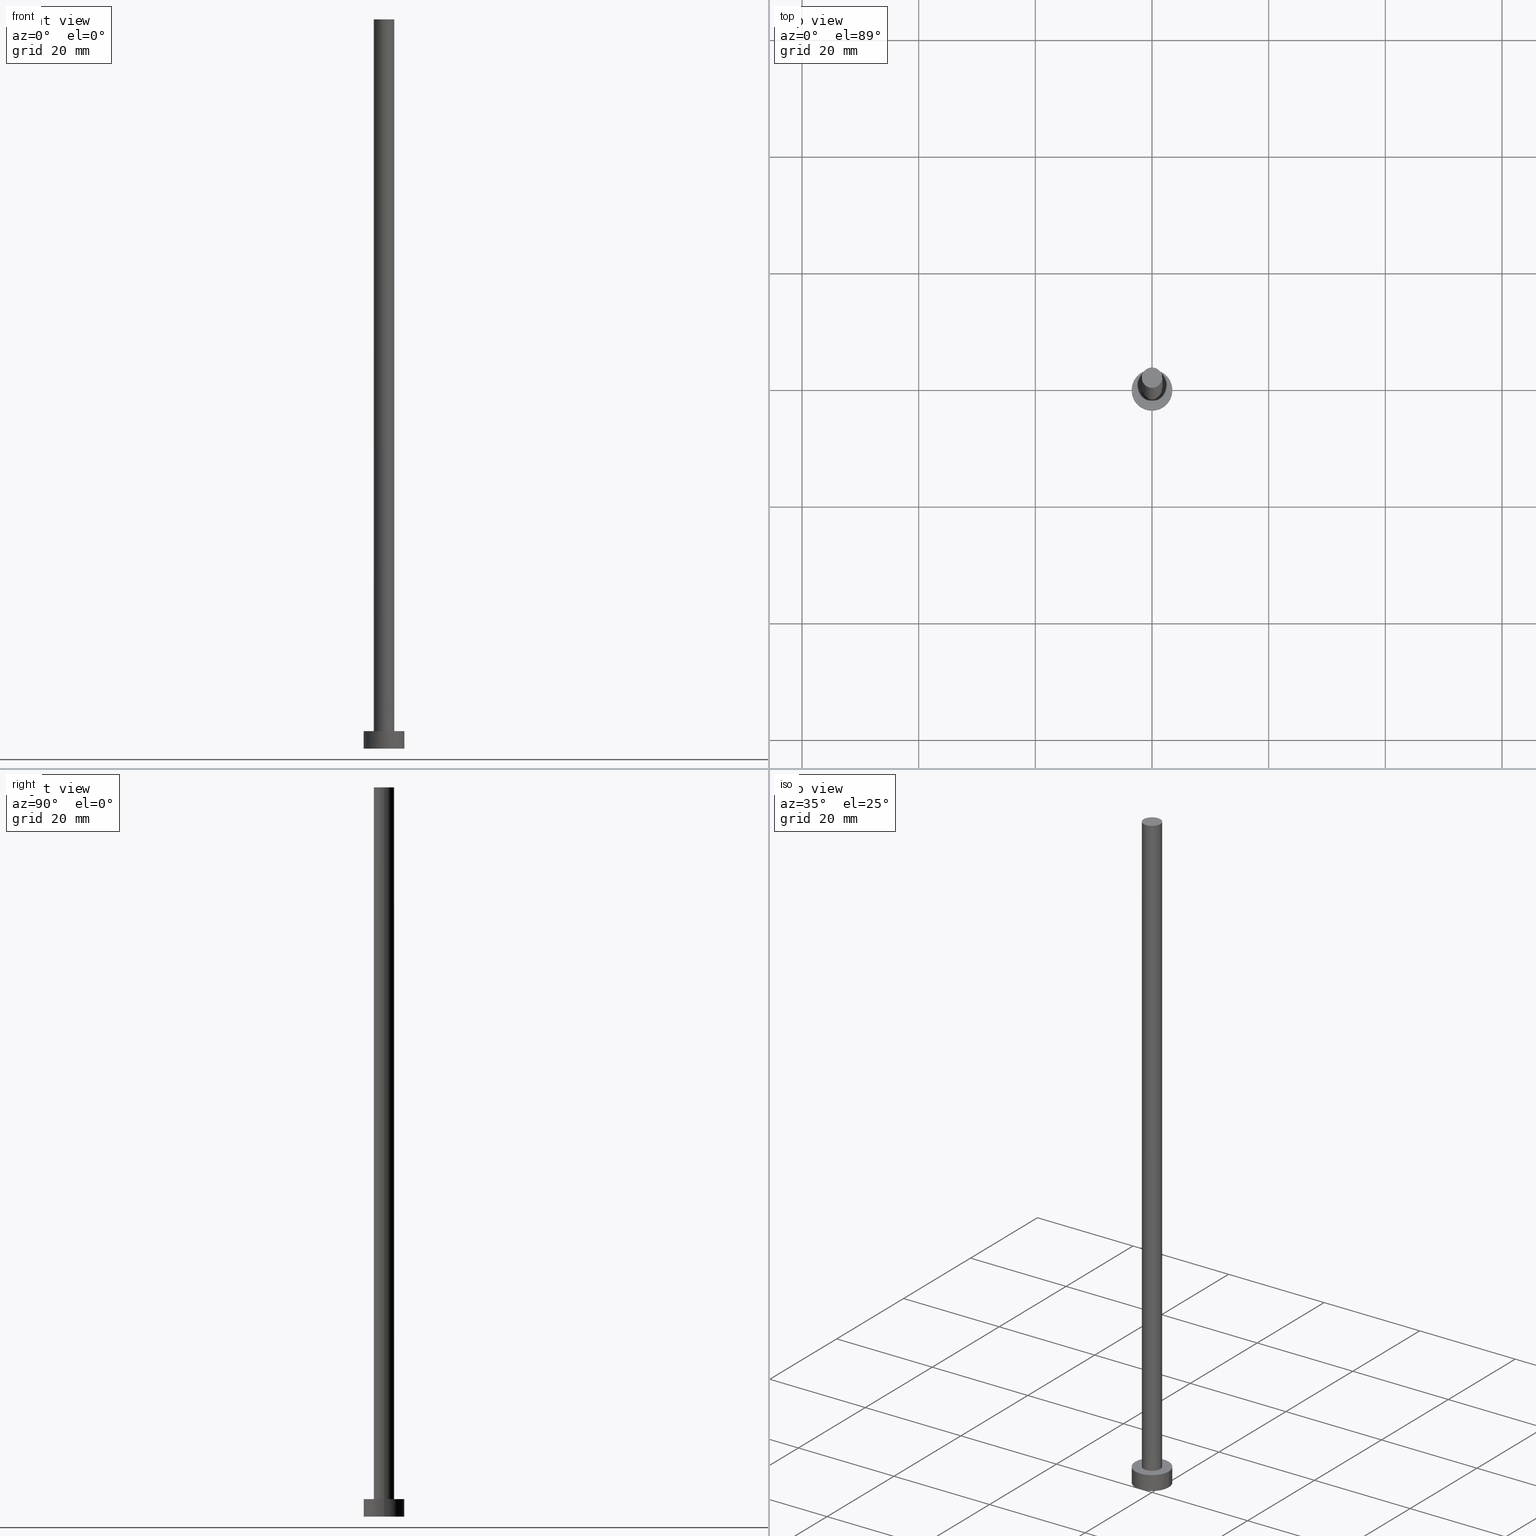
[diagram: canonical four-view strip — front | top / right | iso, engineering-drawing reading convention]
A machine part, canonical four-view strip (front | top / right | iso — engineering-drawing reading convention). The complete STEP part file that produces these views, byte-faithful:
ISO-10303-21;
HEADER;
FILE_DESCRIPTION (( 'STEP AP203' ),
    '1' );
FILE_NAME ('5304.STEP',
    '2023-02-13T14:24:23',
    ( '' ),
    ( '' ),
    'SwSTEP 2.0',
    'SolidWorks 2019',
    '' );
FILE_SCHEMA (( 'CONFIG_CONTROL_DESIGN' ));
ENDSEC;

DATA;
#1 = AXIS2_PLACEMENT_3D ( 'NONE', #151, #25, #3 ) ;
#2 = ORIENTED_EDGE ( 'NONE', *, *, #157, .T. ) ;
#3 = DIRECTION ( 'NONE',  ( 1.000000000000000000, 0.000000000000000000, -0.000000000000000000 ) ) ;
#4 = CARTESIAN_POINT ( 'NONE',  ( 0.000000000000000000, 0.000000000000000000, 3.000000000000000000 ) ) ;
#5 = DIRECTION ( 'NONE',  ( -1.000000000000000000, 0.000000000000000000, 0.000000000000000000 ) ) ;
#6 = ADVANCED_FACE ( 'NONE', ( #26 ), #211, .T. ) ;
#7 = PERSON_AND_ORGANIZATION_ROLE ( 'creator' ) ;
#8 = APPLICATION_CONTEXT ( 'configuration controlled 3d designs of mechanical parts and assemblies' ) ;
#9 = CALENDAR_DATE ( 2023, 13, 2 ) ;
#10 = CC_DESIGN_PERSON_AND_ORGANIZATION_ASSIGNMENT ( #127, #14, ( #139 ) ) ;
#11 = CIRCLE ( 'NONE', #158, 3.500000000000000444 ) ;
#12 = LOCAL_TIME ( 15, 24, 23.00000000000000000, #249 ) ;
#13 = COORDINATED_UNIVERSAL_TIME_OFFSET ( 1, 0, .AHEAD. ) ;
#14 = PERSON_AND_ORGANIZATION_ROLE ( 'classification_officer' ) ;
#15 = APPROVAL_STATUS ( 'not_yet_approved' ) ;
#16 = VERTEX_POINT ( 'NONE', #32 ) ;
#17 = EDGE_CURVE ( 'NONE', #16, #148, #189, .T. ) ;
#18 = EDGE_LOOP ( 'NONE', ( #106, #184, #219, #34 ) ) ;
#19 =( NAMED_UNIT ( * ) SI_UNIT ( $, .STERADIAN. ) SOLID_ANGLE_UNIT ( ) );
#20 = ORIENTED_EDGE ( 'NONE', *, *, #95, .F. ) ;
#21 = CARTESIAN_POINT ( 'NONE',  ( 0.000000000000000000, 0.000000000000000000, 3.000000000000000000 ) ) ;
#22 = DIRECTION ( 'NONE',  ( -0.000000000000000000, -0.000000000000000000, -1.000000000000000000 ) ) ;
#23 = DIRECTION ( 'NONE',  ( -1.000000000000000000, 0.000000000000000000, 0.000000000000000000 ) ) ;
#24 = LINE ( 'NONE', #112, #153 ) ;
#25 = DIRECTION ( 'NONE',  ( 0.000000000000000000, 0.000000000000000000, 1.000000000000000000 ) ) ;
#26 = FACE_OUTER_BOUND ( 'NONE', #195, .T. ) ;
#27 = PERSON_AND_ORGANIZATION ( #197, #64 ) ;
#28 = CARTESIAN_POINT ( 'NONE',  ( 0.000000000000000000, 0.000000000000000000, 0.000000000000000000 ) ) ;
#29 = ADVANCED_FACE ( 'NONE', ( #208, #58 ), #248, .T. ) ;
#30 = PERSON_AND_ORGANIZATION_ROLE ( 'design_owner' ) ;
#31 = MANIFOLD_SOLID_BREP ( 'P�idat vysunut�m3', #236 ) ;
#32 = CARTESIAN_POINT ( 'NONE',  ( 1.750000000000000000, 2.143131898507867804E-16, 3.000000000000000000 ) ) ;
#33 = PERSON_AND_ORGANIZATION ( #197, #64 ) ;
#34 = ORIENTED_EDGE ( 'NONE', *, *, #229, .T. ) ;
#35 = AXIS2_PLACEMENT_3D ( 'NONE', #21, #222, #48 ) ;
#36 = DATE_TIME_ROLE ( 'classification_date' ) ;
#37 = PRODUCT_RELATED_PRODUCT_CATEGORY ( 'detail', '', ( #80 ) ) ;
#38 = EDGE_CURVE ( 'NONE', #84, #16, #245, .T. ) ;
#39 = ORIENTED_EDGE ( 'NONE', *, *, #17, .F. ) ;
#40 = CARTESIAN_POINT ( 'NONE',  ( 3.500000000000000444, 4.286263797015737088E-16, 0.000000000000000000 ) ) ;
#41 = CARTESIAN_POINT ( 'NONE',  ( -1.750000000000000000, 0.000000000000000000, 125.0000000000000000 ) ) ;
#42 = VERTEX_POINT ( 'NONE', #226 ) ;
#43 = DIRECTION ( 'NONE',  ( 0.000000000000000000, 0.000000000000000000, 1.000000000000000000 ) ) ;
#44 = PRODUCT_DEFINITION_SHAPE ( 'NONE', 'NONE',  #77 ) ;
#45 = CC_DESIGN_SECURITY_CLASSIFICATION ( #139, ( #83 ) ) ;
#46 = CYLINDRICAL_SURFACE ( 'NONE', #152, 3.500000000000000444 ) ;
#47 = MECHANICAL_CONTEXT ( 'NONE', #8, 'mechanical' ) ;
#48 = DIRECTION ( 'NONE',  ( 1.000000000000000000, 0.000000000000000000, 0.000000000000000000 ) ) ;
#49 = DATE_AND_TIME ( #76, #12 ) ;
#50 = CARTESIAN_POINT ( 'NONE',  ( 3.500000000000000444, 4.286263797015737088E-16, 3.000000000000000000 ) ) ;
#51 = AXIS2_PLACEMENT_3D ( 'NONE', #69, #150, #82 ) ;
#52 = PERSON_AND_ORGANIZATION ( #197, #64 ) ;
#53 = FACE_OUTER_BOUND ( 'NONE', #18, .T. ) ;
#54 =( NAMED_UNIT ( * ) PLANE_ANGLE_UNIT ( ) SI_UNIT ( $, .RADIAN. ) );
#55 = DIRECTION ( 'NONE',  ( -1.000000000000000000, 0.000000000000000000, 0.000000000000000000 ) ) ;
#56 = AXIS2_PLACEMENT_3D ( 'NONE', #200, #114, #23 ) ;
#57 = DIRECTION ( 'NONE',  ( 1.000000000000000000, 0.000000000000000000, 0.000000000000000000 ) ) ;
#58 = FACE_OUTER_BOUND ( 'NONE', #161, .T. ) ;
#59 = LOCAL_TIME ( 15, 24, 23.00000000000000000, #138 ) ;
#60 = ORIENTED_EDGE ( 'NONE', *, *, #110, .F. ) ;
#61 = SHAPE_DEFINITION_REPRESENTATION ( #44, #91 ) ;
#62 = APPROVAL ( #15, 'NEUR�EN�' ) ;
#63 = ORIENTED_EDGE ( 'NONE', *, *, #229, .F. ) ;
#64 = ORGANIZATION ( 'NEUR�EN�', 'NEUR�EN�', '' ) ;
#65 = CARTESIAN_POINT ( 'NONE',  ( 0.000000000000000000, 0.000000000000000000, 0.000000000000000000 ) ) ;
#66 = CC_DESIGN_DATE_AND_TIME_ASSIGNMENT ( #196, #36, ( #139 ) ) ;
#67 = CARTESIAN_POINT ( 'NONE',  ( 1.750000000000000000, 2.143131898507867804E-16, 125.0000000000000000 ) ) ;
#68 = CIRCLE ( 'NONE', #35, 3.500000000000000444 ) ;
#69 = CARTESIAN_POINT ( 'NONE',  ( 0.000000000000000000, 0.000000000000000000, 3.000000000000000000 ) ) ;
#70 = DIRECTION ( 'NONE',  ( -0.000000000000000000, -0.000000000000000000, -1.000000000000000000 ) ) ;
#71 = FACE_OUTER_BOUND ( 'NONE', #253, .T. ) ;
#72 = DATE_TIME_ROLE ( 'creation_date' ) ;
#73 = LOCAL_TIME ( 15, 24, 23.00000000000000000, #212 ) ;
#74 = APPLICATION_PROTOCOL_DEFINITION ( 'international standard', 'config_control_design', 1994, #111 ) ;
#75 = DIRECTION ( 'NONE',  ( 0.000000000000000000, 0.000000000000000000, 1.000000000000000000 ) ) ;
#76 = CALENDAR_DATE ( 2023, 13, 2 ) ;
#77 = PRODUCT_DEFINITION ( 'NEZN�M�', '', #83, #177 ) ;
#78 = ORIENTED_EDGE ( 'NONE', *, *, #140, .F. ) ;
#79 = VERTEX_POINT ( 'NONE', #40 ) ;
#80 = PRODUCT ( '5304', '5304', '', ( #47 ) ) ;
#81 = ORIENTED_EDGE ( 'NONE', *, *, #140, .T. ) ;
#82 = DIRECTION ( 'NONE',  ( 1.000000000000000000, 0.000000000000000000, 0.000000000000000000 ) ) ;
#83 = PRODUCT_DEFINITION_FORMATION_WITH_SPECIFIED_SOURCE ( 'LIBOVOLN�', '', #80, .NOT_KNOWN. ) ;
#84 = VERTEX_POINT ( 'NONE', #67 ) ;
#85 = ADVANCED_FACE ( 'NONE', ( #144 ), #147, .T. ) ;
#86 = DIRECTION ( 'NONE',  ( 1.000000000000000000, 0.000000000000000000, 0.000000000000000000 ) ) ;
#87 = DIRECTION ( 'NONE',  ( 1.000000000000000000, 0.000000000000000000, 0.000000000000000000 ) ) ;
#88 = DIRECTION ( 'NONE',  ( 0.000000000000000000, 0.000000000000000000, 1.000000000000000000 ) ) ;
#89 = VECTOR ( 'NONE', #70, 1000.000000000000000 ) ;
#90 = EDGE_CURVE ( 'NONE', #221, #84, #241, .T. ) ;
#91 = ADVANCED_BREP_SHAPE_REPRESENTATION ( '5304', ( #31, #174 ), #217 ) ;
#92 = AXIS2_PLACEMENT_3D ( 'NONE', #121, #167, #194 ) ;
#93 = APPROVAL_DATE_TIME ( #135, #164 ) ;
#94 = CARTESIAN_POINT ( 'NONE',  ( 0.000000000000000000, 0.000000000000000000, 125.0000000000000000 ) ) ;
#95 = EDGE_CURVE ( 'NONE', #221, #148, #201, .T. ) ;
#96 = APPROVAL_ROLE ( '' ) ;
#97 = DATE_AND_TIME ( #172, #101 ) ;
#98 = APPROVAL_ROLE ( '' ) ;
#99 = VECTOR ( 'NONE', #154, 1000.000000000000000 ) ;
#100 = CC_DESIGN_PERSON_AND_ORGANIZATION_ASSIGNMENT ( #52, #175, ( #83 ) ) ;
#101 = LOCAL_TIME ( 15, 24, 23.00000000000000000, #13 ) ;
#102 = ORIENTED_EDGE ( 'NONE', *, *, #240, .F. ) ;
#103 = CALENDAR_DATE ( 2023, 13, 2 ) ;
#104 = ORIENTED_EDGE ( 'NONE', *, *, #90, .T. ) ;
#105 = VECTOR ( 'NONE', #22, 1000.000000000000000 ) ;
#106 = ORIENTED_EDGE ( 'NONE', *, *, #38, .F. ) ;
#107 = CALENDAR_DATE ( 2023, 13, 2 ) ;
#108 = ORIENTED_EDGE ( 'NONE', *, *, #170, .T. ) ;
#109 = ORIENTED_EDGE ( 'NONE', *, *, #233, .T. ) ;
#110 = EDGE_CURVE ( 'NONE', #84, #221, #235, .T. ) ;
#111 = APPLICATION_CONTEXT ( 'configuration controlled 3d designs of mechanical parts and assemblies' ) ;
#112 = CARTESIAN_POINT ( 'NONE',  ( 3.500000000000000444, 4.286263797015737088E-16, 3.000000000000000000 ) ) ;
#113 = DIRECTION ( 'NONE',  ( 1.000000000000000000, 0.000000000000000000, -0.000000000000000000 ) ) ;
#114 = DIRECTION ( 'NONE',  ( -0.000000000000000000, -0.000000000000000000, -1.000000000000000000 ) ) ;
#115 = CARTESIAN_POINT ( 'NONE',  ( 0.000000000000000000, 0.000000000000000000, 0.000000000000000000 ) ) ;
#116 = CARTESIAN_POINT ( 'NONE',  ( -1.750000000000000000, 0.000000000000000000, 3.000000000000000000 ) ) ;
#117 = APPROVAL ( #120, 'NEUR�EN�' ) ;
#118 = PERSON_AND_ORGANIZATION_ROLE ( 'creator' ) ;
#119 = CARTESIAN_POINT ( 'NONE',  ( 0.000000000000000000, 0.000000000000000000, 125.0000000000000000 ) ) ;
#120 = APPROVAL_STATUS ( 'not_yet_approved' ) ;
#121 = CARTESIAN_POINT ( 'NONE',  ( 0.000000000000000000, 0.000000000000000000, 3.000000000000000000 ) ) ;
#122 = ADVANCED_FACE ( 'NONE', ( #53 ), #155, .T. ) ;
#123 = DIRECTION ( 'NONE',  ( -0.000000000000000000, -0.000000000000000000, -1.000000000000000000 ) ) ;
#124 = ORIENTED_EDGE ( 'NONE', *, *, #157, .F. ) ;
#125 = APPROVAL_PERSON_ORGANIZATION ( #207, #117, #188 ) ;
#126 = ADVANCED_FACE ( 'NONE', ( #234 ), #213, .F. ) ;
#127 = PERSON_AND_ORGANIZATION ( #197, #64 ) ;
#128 = AXIS2_PLACEMENT_3D ( 'NONE', #246, #75, #228 ) ;
#129 = CIRCLE ( 'NONE', #131, 3.500000000000000444 ) ;
#130 = CARTESIAN_POINT ( 'NONE',  ( 0.000000000000000000, 0.000000000000000000, 3.000000000000000000 ) ) ;
#131 = AXIS2_PLACEMENT_3D ( 'NONE', #4, #183, #162 ) ;
#132 = DIRECTION ( 'NONE',  ( 1.000000000000000000, 0.000000000000000000, 0.000000000000000000 ) ) ;
#133 = PLANE ( 'NONE',  #178 ) ;
#134 = CC_DESIGN_PERSON_AND_ORGANIZATION_ASSIGNMENT ( #33, #118, ( #77 ) ) ;
#135 = DATE_AND_TIME ( #9, #247 ) ;
#136 = DIRECTION ( 'NONE',  ( 0.000000000000000000, 0.000000000000000000, 1.000000000000000000 ) ) ;
#137 = DIRECTION ( 'NONE',  ( -1.000000000000000000, 0.000000000000000000, 0.000000000000000000 ) ) ;
#138 = COORDINATED_UNIVERSAL_TIME_OFFSET ( 1, 0, .AHEAD. ) ;
#139 = SECURITY_CLASSIFICATION ( '', '', #214 ) ;
#140 = EDGE_CURVE ( 'NONE', #143, #79, #24, .T. ) ;
#141 = ORIENTED_EDGE ( 'NONE', *, *, #110, .T. ) ;
#142 = APPLICATION_PROTOCOL_DEFINITION ( 'international standard', 'config_control_design', 1994, #8 ) ;
#143 = VERTEX_POINT ( 'NONE', #50 ) ;
#144 = FACE_OUTER_BOUND ( 'NONE', #206, .T. ) ;
#145 = DIRECTION ( 'NONE',  ( -0.000000000000000000, -0.000000000000000000, -1.000000000000000000 ) ) ;
#146 = AXIS2_PLACEMENT_3D ( 'NONE', #65, #136, #244 ) ;
#147 = CYLINDRICAL_SURFACE ( 'NONE', #56, 1.750000000000000000 ) ;
#148 = VERTEX_POINT ( 'NONE', #116 ) ;
#149 = CC_DESIGN_PERSON_AND_ORGANIZATION_ASSIGNMENT ( #27, #7, ( #83 ) ) ;
#150 = DIRECTION ( 'NONE',  ( 0.000000000000000000, 0.000000000000000000, 1.000000000000000000 ) ) ;
#151 = CARTESIAN_POINT ( 'NONE',  ( 0.000000000000000000, 0.000000000000000000, 0.000000000000000000 ) ) ;
#152 = AXIS2_PLACEMENT_3D ( 'NONE', #130, #199, #5 ) ;
#153 = VECTOR ( 'NONE', #145, 1000.000000000000000 ) ;
#154 = DIRECTION ( 'NONE',  ( -0.000000000000000000, -0.000000000000000000, -1.000000000000000000 ) ) ;
#155 = CYLINDRICAL_SURFACE ( 'NONE', #225, 1.750000000000000000 ) ;
#156 = APPROVAL_DATE_TIME ( #192, #62 ) ;
#157 = EDGE_CURVE ( 'NONE', #79, #42, #11, .T. ) ;
#158 = AXIS2_PLACEMENT_3D ( 'NONE', #28, #43, #86 ) ;
#159 = CC_DESIGN_APPROVAL ( #117, ( #83 ) ) ;
#160 = EDGE_LOOP ( 'NONE', ( #78, #102, #108, #202 ) ) ;
#161 = EDGE_LOOP ( 'NONE', ( #239, #109 ) ) ;
#162 = DIRECTION ( 'NONE',  ( 1.000000000000000000, 0.000000000000000000, 0.000000000000000000 ) ) ;
#163 = ORIENTED_EDGE ( 'NONE', *, *, #38, .T. ) ;
#164 = APPROVAL ( #224, 'NEUR�EN�' ) ;
#165 = CARTESIAN_POINT ( 'NONE',  ( -3.500000000000000444, 0.000000000000000000, 3.000000000000000000 ) ) ;
#166 = ADVANCED_FACE ( 'NONE', ( #186 ), #46, .T. ) ;
#167 = DIRECTION ( 'NONE',  ( 0.000000000000000000, 0.000000000000000000, 1.000000000000000000 ) ) ;
#168 =( LENGTH_UNIT ( ) NAMED_UNIT ( * ) SI_UNIT ( .MILLI., .METRE. ) );
#169 = APPROVAL_DATE_TIME ( #49, #117 ) ;
#170 = EDGE_CURVE ( 'NONE', #216, #42, #243, .T. ) ;
#171 = CARTESIAN_POINT ( 'NONE',  ( 0.000000000000000000, 0.000000000000000000, 3.000000000000000000 ) ) ;
#172 = CALENDAR_DATE ( 2023, 13, 2 ) ;
#173 = AXIS2_PLACEMENT_3D ( 'NONE', #230, #123, #55 ) ;
#174 = AXIS2_PLACEMENT_3D ( 'NONE', #115, #185, #87 ) ;
#175 = PERSON_AND_ORGANIZATION_ROLE ( 'design_supplier' ) ;
#176 = ORIENTED_EDGE ( 'NONE', *, *, #170, .F. ) ;
#177 = DESIGN_CONTEXT ( 'detailed design', #111, 'design' ) ;
#178 = AXIS2_PLACEMENT_3D ( 'NONE', #119, #88, #113 ) ;
#179 = CC_DESIGN_PERSON_AND_ORGANIZATION_ASSIGNMENT ( #203, #30, ( #80 ) ) ;
#180 = ORIENTED_EDGE ( 'NONE', *, *, #252, .F. ) ;
#181 = APPROVAL_PERSON_ORGANIZATION ( #254, #62, #98 ) ;
#182 = CARTESIAN_POINT ( 'NONE',  ( -3.500000000000000444, 0.000000000000000000, 3.000000000000000000 ) ) ;
#183 = DIRECTION ( 'NONE',  ( 0.000000000000000000, 0.000000000000000000, 1.000000000000000000 ) ) ;
#184 = ORIENTED_EDGE ( 'NONE', *, *, #90, .F. ) ;
#185 = DIRECTION ( 'NONE',  ( 0.000000000000000000, 0.000000000000000000, 1.000000000000000000 ) ) ;
#186 = FACE_OUTER_BOUND ( 'NONE', #160, .T. ) ;
#187 = CIRCLE ( 'NONE', #146, 3.500000000000000444 ) ;
#188 = APPROVAL_ROLE ( '' ) ;
#189 = CIRCLE ( 'NONE', #204, 1.750000000000000000 ) ;
#190 = DIRECTION ( 'NONE',  ( 0.000000000000000000, 0.000000000000000000, 1.000000000000000000 ) ) ;
#191 = CARTESIAN_POINT ( 'NONE',  ( 1.750000000000000000, 2.143131898507867804E-16, 125.0000000000000000 ) ) ;
#192 = DATE_AND_TIME ( #103, #73 ) ;
#193 = APPROVAL_PERSON_ORGANIZATION ( #227, #164, #96 ) ;
#194 = DIRECTION ( 'NONE',  ( 1.000000000000000000, 0.000000000000000000, -0.000000000000000000 ) ) ;
#195 = EDGE_LOOP ( 'NONE', ( #255, #81, #2, #176 ) ) ;
#196 = DATE_AND_TIME ( #107, #59 ) ;
#197 = PERSON ( 'NEUR�EN�', 'NEUR�EN�', 'NEUR�EN�', ('NEUR�EN�'), ('NEUR�EN�'), ('NEUR�EN�') ) ;
#198 = CC_DESIGN_APPROVAL ( #62, ( #139 ) ) ;
#199 = DIRECTION ( 'NONE',  ( -0.000000000000000000, -0.000000000000000000, -1.000000000000000000 ) ) ;
#200 = CARTESIAN_POINT ( 'NONE',  ( 0.000000000000000000, 0.000000000000000000, 125.0000000000000000 ) ) ;
#201 = LINE ( 'NONE', #242, #89 ) ;
#202 = ORIENTED_EDGE ( 'NONE', *, *, #252, .T. ) ;
#203 = PERSON_AND_ORGANIZATION ( #197, #64 ) ;
#204 = AXIS2_PLACEMENT_3D ( 'NONE', #171, #190, #57 ) ;
#205 = CC_DESIGN_APPROVAL ( #164, ( #77 ) ) ;
#206 = EDGE_LOOP ( 'NONE', ( #60, #163, #215, #20 ) ) ;
#207 = PERSON_AND_ORGANIZATION ( #197, #64 ) ;
#208 = FACE_BOUND ( 'NONE', #218, .T. ) ;
#209 = DIRECTION ( 'NONE',  ( -0.000000000000000000, -0.000000000000000000, -1.000000000000000000 ) ) ;
#210 = ADVANCED_FACE ( 'NONE', ( #71 ), #133, .T. ) ;
#211 = CYLINDRICAL_SURFACE ( 'NONE', #173, 3.500000000000000444 ) ;
#212 = COORDINATED_UNIVERSAL_TIME_OFFSET ( 1, 0, .AHEAD. ) ;
#213 = PLANE ( 'NONE',  #1 ) ;
#214 = SECURITY_CLASSIFICATION_LEVEL ( 'unclassified' ) ;
#215 = ORIENTED_EDGE ( 'NONE', *, *, #17, .T. ) ;
#216 = VERTEX_POINT ( 'NONE', #165 ) ;
#217 =( GEOMETRIC_REPRESENTATION_CONTEXT ( 3 ) GLOBAL_UNCERTAINTY_ASSIGNED_CONTEXT ( ( #232 ) ) GLOBAL_UNIT_ASSIGNED_CONTEXT ( ( #168, #54, #19 ) ) REPRESENTATION_CONTEXT ( 'NONE', 'WORKASPACE' ) );
#218 = EDGE_LOOP ( 'NONE', ( #63, #39 ) ) ;
#219 = ORIENTED_EDGE ( 'NONE', *, *, #95, .T. ) ;
#220 = DIRECTION ( 'NONE',  ( 0.000000000000000000, 0.000000000000000000, 1.000000000000000000 ) ) ;
#221 = VERTEX_POINT ( 'NONE', #41 ) ;
#222 = DIRECTION ( 'NONE',  ( 0.000000000000000000, 0.000000000000000000, 1.000000000000000000 ) ) ;
#223 = CARTESIAN_POINT ( 'NONE',  ( 0.000000000000000000, 0.000000000000000000, 125.0000000000000000 ) ) ;
#224 = APPROVAL_STATUS ( 'not_yet_approved' ) ;
#225 = AXIS2_PLACEMENT_3D ( 'NONE', #94, #209, #137 ) ;
#226 = CARTESIAN_POINT ( 'NONE',  ( -3.500000000000000444, 0.000000000000000000, 0.000000000000000000 ) ) ;
#227 = PERSON_AND_ORGANIZATION ( #197, #64 ) ;
#228 = DIRECTION ( 'NONE',  ( 1.000000000000000000, 0.000000000000000000, 0.000000000000000000 ) ) ;
#229 = EDGE_CURVE ( 'NONE', #148, #16, #251, .T. ) ;
#230 = CARTESIAN_POINT ( 'NONE',  ( 0.000000000000000000, 0.000000000000000000, 3.000000000000000000 ) ) ;
#231 = COORDINATED_UNIVERSAL_TIME_OFFSET ( 1, 0, .AHEAD. ) ;
#232 = UNCERTAINTY_MEASURE_WITH_UNIT (LENGTH_MEASURE( 1.000000000000000082E-05 ), #168, 'distance_accuracy_value', 'NONE');
#233 = EDGE_CURVE ( 'NONE', #143, #216, #68, .T. ) ;
#234 = FACE_OUTER_BOUND ( 'NONE', #237, .T. ) ;
#235 = CIRCLE ( 'NONE', #128, 1.750000000000000000 ) ;
#236 = CLOSED_SHELL ( 'NONE', ( #85, #6, #166, #29, #126, #122, #210 ) ) ;
#237 = EDGE_LOOP ( 'NONE', ( #180, #124 ) ) ;
#238 = AXIS2_PLACEMENT_3D ( 'NONE', #223, #220, #132 ) ;
#239 = ORIENTED_EDGE ( 'NONE', *, *, #240, .T. ) ;
#240 = EDGE_CURVE ( 'NONE', #216, #143, #129, .T. ) ;
#241 = CIRCLE ( 'NONE', #238, 1.750000000000000000 ) ;
#242 = CARTESIAN_POINT ( 'NONE',  ( -1.750000000000000000, 0.000000000000000000, 125.0000000000000000 ) ) ;
#243 = LINE ( 'NONE', #182, #105 ) ;
#244 = DIRECTION ( 'NONE',  ( 1.000000000000000000, 0.000000000000000000, 0.000000000000000000 ) ) ;
#245 = LINE ( 'NONE', #191, #99 ) ;
#246 = CARTESIAN_POINT ( 'NONE',  ( 0.000000000000000000, 0.000000000000000000, 125.0000000000000000 ) ) ;
#247 = LOCAL_TIME ( 15, 24, 23.00000000000000000, #231 ) ;
#248 = PLANE ( 'NONE',  #92 ) ;
#249 = COORDINATED_UNIVERSAL_TIME_OFFSET ( 1, 0, .AHEAD. ) ;
#250 = CC_DESIGN_DATE_AND_TIME_ASSIGNMENT ( #97, #72, ( #77 ) ) ;
#251 = CIRCLE ( 'NONE', #51, 1.750000000000000000 ) ;
#252 = EDGE_CURVE ( 'NONE', #42, #79, #187, .T. ) ;
#253 = EDGE_LOOP ( 'NONE', ( #104, #141 ) ) ;
#254 = PERSON_AND_ORGANIZATION ( #197, #64 ) ;
#255 = ORIENTED_EDGE ( 'NONE', *, *, #233, .F. ) ;
ENDSEC;
END-ISO-10303-21;
